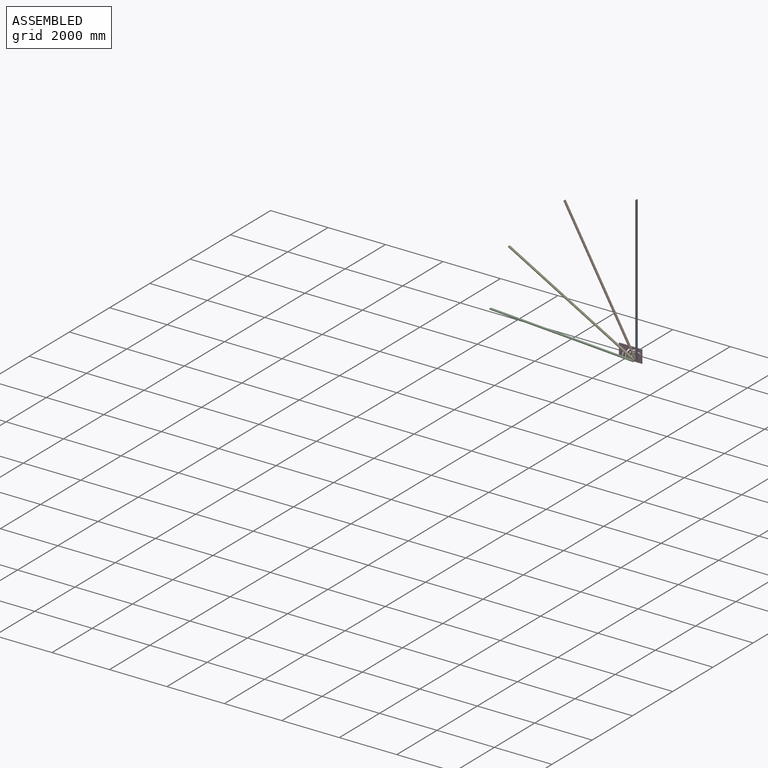
[diagram: assembled view]
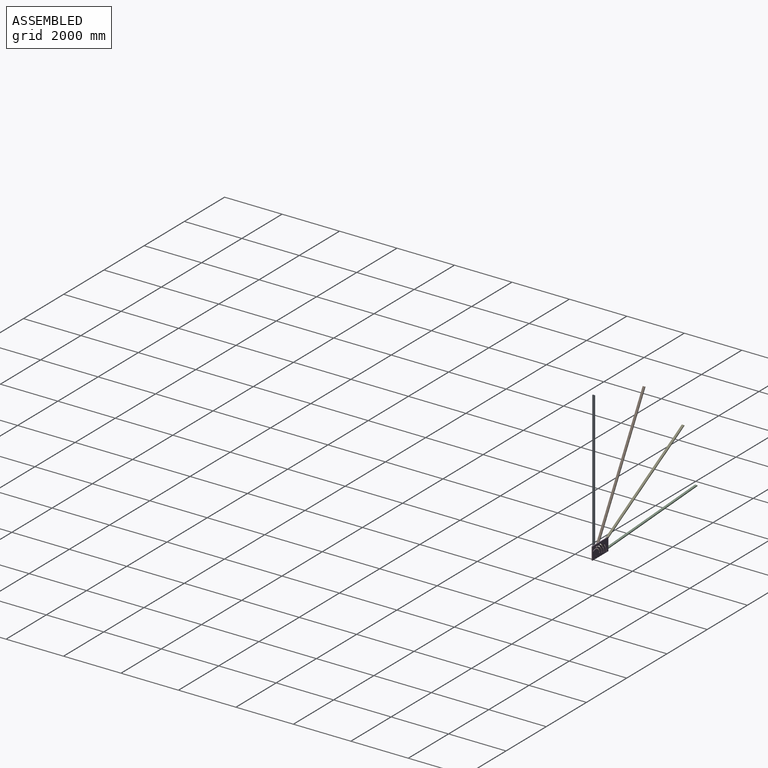
[diagram: assembled view, second angle]
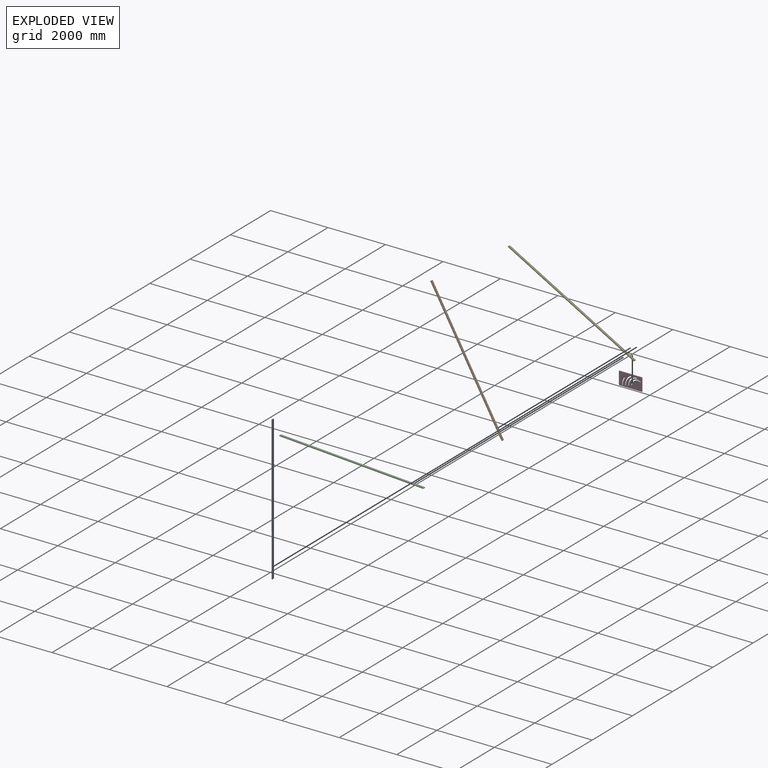
[diagram: exploded view]
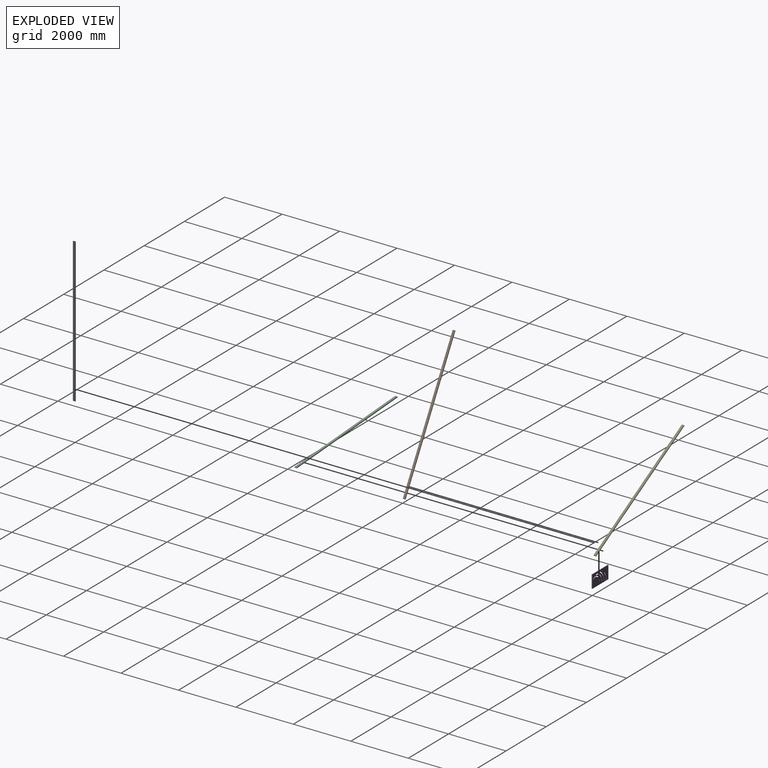
[diagram: exploded view, second angle]
ASSEMBLY  parts=5 mates=4
PART A: 20 faces, bbox 80x5024x30 mm
  f0: plane 5009x80mm, normal (0,0,-1), area 400720mm2, adj f1,f4,f5,f10
  f1: cylinder r=15mm len=80mm, axis (-1,0,0), area 3769.9mm2, adj f0,f2,f4,f5
  f2: plane 5009x80mm, normal (0,0,1), area 400720mm2, adj f1,f4,f5,f10
  f3: cylinder r=5mm len=80mm, axis (-1,0,0), area 2513.3mm2, adj f4,f5
  f4: plane 5024x30mm, normal (1,0,0), area 149288.3mm2, adj f0,f1,f2,f3,f10,f12,f13,f14
  f5: plane 5024x30mm, normal (-1,0,0), area 149288.3mm2, adj f0,f1,f2,f3,f10,f16,f17,f18
  f6: plane 4995x74mm, normal (0,0,1), area 369630mm2, adj f7,f9,f10,f11
  f7: plane 4995x24mm, normal (1,0,0), area 118623.4mm2, adj f6,f8,f10,f11,f16,f17,f18,f19
  f8: plane 4995x74mm, normal (0,0,-1), area 369630mm2, adj f7,f9,f10,f11
  f9: plane 4995x24mm, normal (-1,0,0), area 118623.4mm2, adj f6,f8,f10,f11,f12,f13,f14,f15
  f10: plane 80x30mm, normal (0,-1,0), area 624mm2, adj f0,f2,f4,f5,f6,f7,f8,f9
  f11: plane 74x24mm, normal (0,-1,0), area 1776mm2, adj f6,f7,f8,f9
  f12: cylinder r=10mm len=20mm, axis (1,0,0), area 188.5mm2, adj f4,f9
  f13: cylinder r=10mm len=20mm, axis (1,0,0), area 188.5mm2, adj f4,f9
  f14: cylinder r=10mm len=20mm, axis (1,0,0), area 188.5mm2, adj f4,f9
  f15: cylinder r=10mm len=20mm, axis (1,0,0), area 188.5mm2, adj f4,f9
  f16: cylinder r=10mm len=20mm, axis (1,0,0), area 188.5mm2, adj f5,f7
  f17: cylinder r=10mm len=20mm, axis (1,0,0), area 188.5mm2, adj f5,f7
  f18: cylinder r=10mm len=20mm, axis (1,0,0), area 188.5mm2, adj f5,f7
  f19: cylinder r=10mm len=20mm, axis (1,0,0), area 188.5mm2, adj f5,f7
PART B: same geometry as A
PART C: same geometry as A
PART D: 26 faces, bbox 800x25x450 mm
  f0: plane 800x25mm, normal (0,0,-1), area 20000mm2, adj f1,f23,f24,f25
  f1: plane 450x25mm, normal (1,0,0), area 11250mm2, adj f0,f2,f24,f25
  f2: plane 800x25mm, normal (0,0,1), area 20000mm2, adj f1,f23,f24,f25
  f3: cylinder r=15mm len=30mm, axis (0,1,0), area 1178.1mm2, adj f4,f19,f24,f25
  f4: cylinder r=215mm len=330.16mm, axis (0,1,0), area 11481.3mm2, adj f3,f5,f24,f25
  f5: cylinder r=15mm len=27.67mm, axis (0,1,0), area 1178.1mm2, adj f4,f19,f24,f25
  f6: cylinder r=15mm len=30mm, axis (0,1,0), area 1178.1mm2, adj f7,f20,f24,f25
  f7: cylinder r=295mm len=295mm, axis (0,1,0), area 11584.6mm2, adj f6,f8,f24,f25
  f8: cylinder r=15mm len=30mm, axis (0,1,0), area 1178.1mm2, adj f7,f20,f24,f25
  f9: cylinder r=15mm len=30mm, axis (0,1,0), area 1178.1mm2, adj f10,f21,f24,f25
  f10: cylinder r=375mm len=330.38mm, axis (0,1,0), area 10106.3mm2, adj f9,f11,f24,f25
  f11: cylinder r=15mm len=28.22mm, axis (0,1,0), area 1178.1mm2, adj f10,f21,f24,f25
  f12: cylinder r=15mm len=30mm, axis (0,1,0), area 1178.1mm2, adj f13,f22,f24,f25
  f13: cylinder r=455mm len=259.7mm, axis (0,1,0), area 6909.8mm2, adj f12,f14,f24,f25
  f14: cylinder r=15mm len=27.32mm, axis (0,1,0), area 1178.1mm2, adj f13,f22,f24,f25
  f15: cylinder r=5mm len=25mm, axis (0,1,0), area 785.4mm2, adj f24,f25
  f16: cylinder r=5mm len=25mm, axis (0,1,0), area 785.4mm2, adj f24,f25
  f17: cylinder r=5mm len=25mm, axis (0,1,0), area 785.4mm2, adj f24,f25
  f18: cylinder r=5mm len=25mm, axis (0,1,0), area 785.4mm2, adj f24,f25
  f19: cylinder r=185mm len=284.09mm, axis (0,1,0), area 9879.3mm2, adj f3,f5,f24,f25
  f20: cylinder r=265mm len=265mm, axis (0,1,0), area 10406.5mm2, adj f6,f8,f24,f25
  f21: cylinder r=345mm len=303.95mm, axis (0,1,0), area 9297.8mm2, adj f9,f11,f24,f25
  f22: cylinder r=425mm len=242.58mm, axis (0,1,0), area 6454.2mm2, adj f12,f14,f24,f25
  f23: plane 450x25mm, normal (-1,0,0), area 11250mm2, adj f0,f2,f24,f25
  f24: plane 800x450mm, normal (0,-1,0), area 311186.5mm2, adj f0,f1,f2,f3,f4,f5,f6,f7
  f25: plane 800x450mm, normal (0,1,0), area 311186.5mm2, adj f0,f1,f2,f3,f4,f5,f6,f7
PART E: same geometry as A
PLACE A rot(axis=(-0.58,0.58,-0.58),120deg) t=(-333.27,-182.52,137.79)mm
PLACE B rot(axis=(-0.45,0.45,-0.77),104.7deg) t=(-364.73,-182.52,107.41)mm
PLACE C rot(axis=(-0.03,0.03,-1),90.1deg) t=(-426.22,-182.52,45.03)mm
PLACE D t=(-173.27,-117.52,14.84)mm fixed
PLACE E rot(axis=(-0.24,0.24,-0.94),93.6deg) t=(-395.85,-182.52,76.27)mm
MATE revolute E.f3 <-> D.f10  axis (0,1,0) through (-393.27,-142.52,74.84)mm
MATE revolute C.f3 <-> D.f13  axis (0,1,0) through (-423.27,-142.52,44.84)mm
MATE revolute B.f3 <-> D.f7  axis (0,1,0) through (-363.27,-142.52,104.84)mm
MATE revolute A.f3 <-> D.f4  axis (0,1,0) through (-333.27,-142.52,134.84)mm
